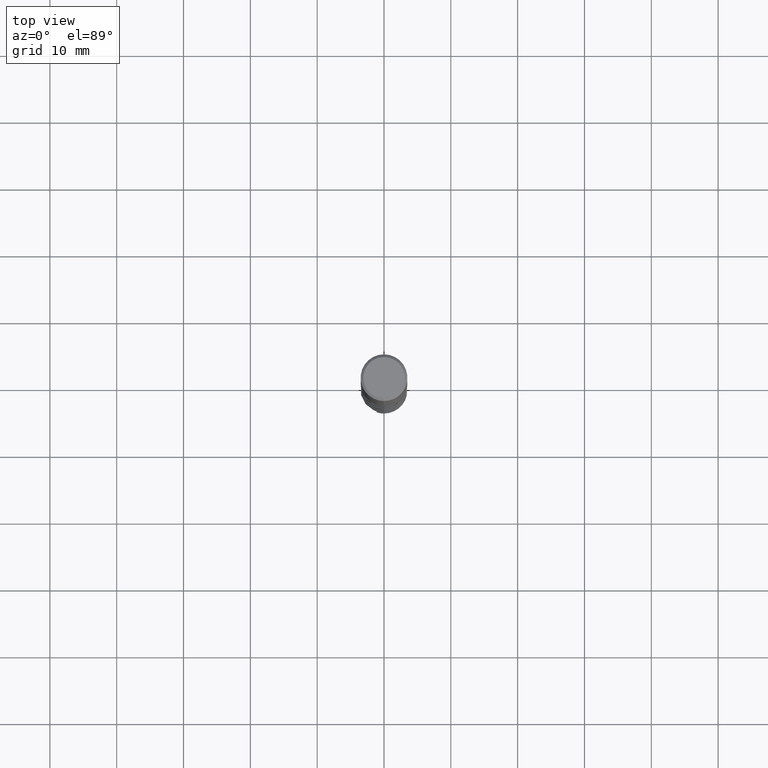
[diagram: clean part render]
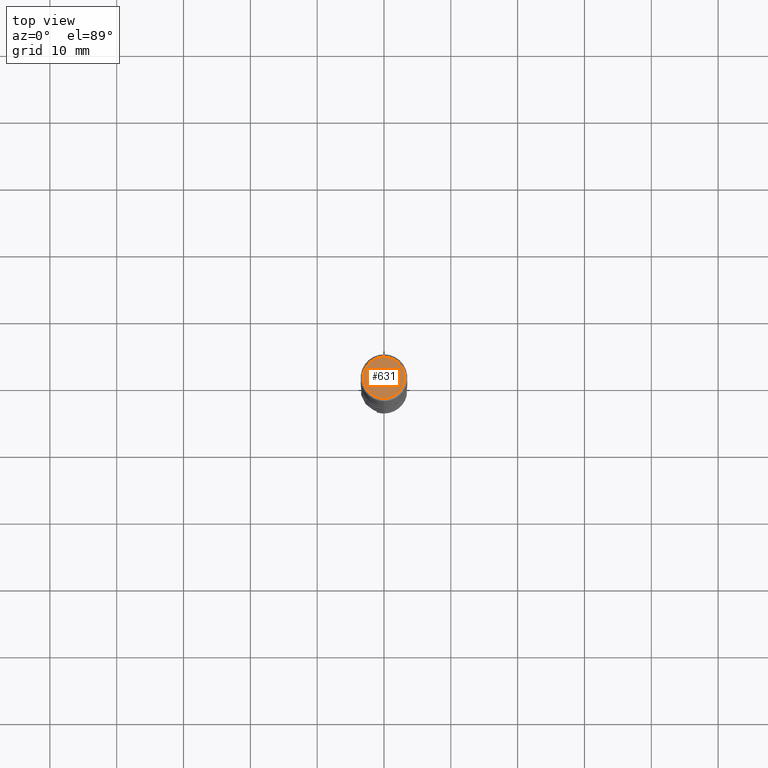
[diagram: same view with one face highlighted and labeled with its STEP entity id]
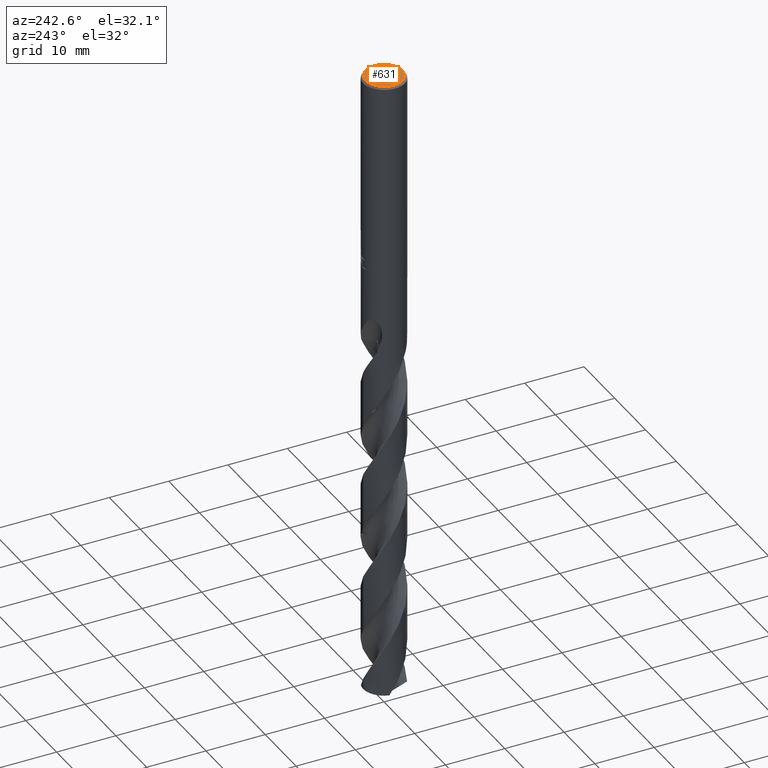
[diagram: same view with one face highlighted and labeled with its STEP entity id]
A machine part, top view. The second image highlights one B-rep face of the part: STEP entity #631.
A second angle (auxiliary view) of the same face is appended — the face is thin or edge-on in the first view.
In plain terms, the highlighted planar face has unit normal (-0, 0, 1).
Its self-contained STEP definition (entity closure, byte-faithful):
#355=VERTEX_POINT('',#862);
#407=VERTEX_POINT('',#920);
#537=EDGE_CURVE('',#407,#355,#1057,.T.);
#545=EDGE_CURVE('',#355,#407,#1066,.T.);
#631=ADVANCED_FACE('',(#1162),#1163,.T.);
#862=CARTESIAN_POINT('',(0.0,3.1,0.0));
#920=CARTESIAN_POINT('',(3.79627969684937E-016,-3.1,0.0));
#1057=CIRCLE('',#4263,3.1);
#1066=CIRCLE('',#4275,3.1);
#1162=FACE_OUTER_BOUND('',#7103,.T.);
#1163=PLANE('',#7104);
#4263=AXIS2_PLACEMENT_3D('',#8834,#8835,#8836);
#4275=AXIS2_PLACEMENT_3D('',#8846,#8847,#8848);
#7103=EDGE_LOOP('',(#8975,#8976));
#7104=AXIS2_PLACEMENT_3D('',#8977,#8978,#8979);
#8834=CARTESIAN_POINT('',(0.0,0.0,0.0));
#8835=DIRECTION('',(0.0,0.0,-1.0));
#8836=DIRECTION('',(0.0,1.0,0.0));
#8846=CARTESIAN_POINT('',(0.0,0.0,0.0));
#8847=DIRECTION('',(0.0,0.0,-1.0));
#8848=DIRECTION('',(0.0,1.0,0.0));
#8975=ORIENTED_EDGE('',*,*,#545,.F.);
#8976=ORIENTED_EDGE('',*,*,#537,.F.);
#8977=CARTESIAN_POINT('',(0.0,1.55,0.0));
#8978=DIRECTION('',(-0.0,0.0,1.0));
#8979=DIRECTION('',(0.0,-1.0,0.0));